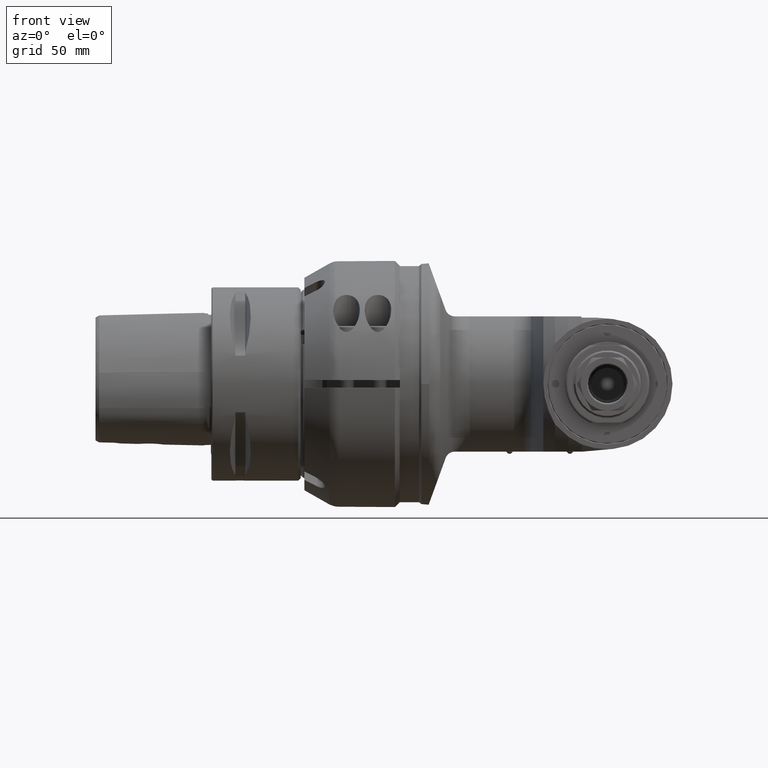
[diagram: clean part render]
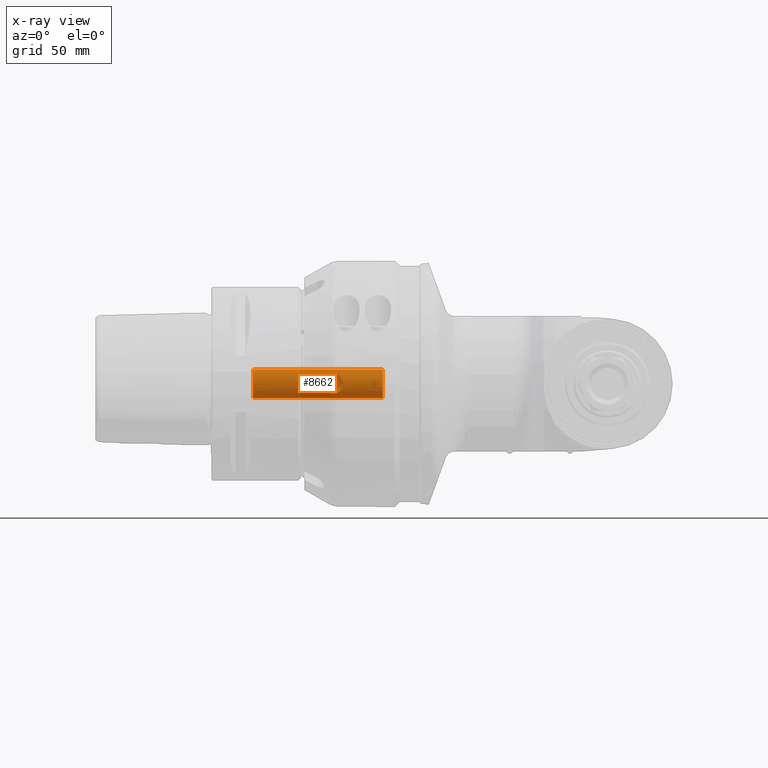
[diagram: x-ray — body ghosted, one internal face saturated and labeled with its STEP entity id]
A machine part, front view, then the same camera in x-ray: the body is ghosted and one INTERNAL B-rep face — a face not visible from any outside direction — is saturated and labeled: STEP entity #8662.
In plain terms, the highlighted cylindrical surface (bore or boss wall) has radius 6 mm, axis along (-1, 0, 0).
Its self-contained STEP definition (entity closure, byte-faithful):
#480=B_SPLINE_CURVE_WITH_KNOTS('',3,(#15079,#15080,#15081,#15082,#15083,
#15084,#15085,#15086,#15087,#15088,#15089,#15090,#15091,#15092,#15093,#15094,
#15095,#15096),.UNSPECIFIED.,.F.,.F.,(4,2,2,2,2,2,2,2,4),(-1.88331445659921,
-1.72723965461919,-1.57116485263918,-1.41335391185266,-1.25554297106614,
-1.09773203027962,-0.939921089493101,-0.783846287513086,-0.62777148553307),
 .UNSPECIFIED.);
#481=B_SPLINE_CURVE_WITH_KNOTS('',3,(#15098,#15099,#15100,#15101,#15102,
#15103,#15104,#15105,#15106,#15107,#15108,#15109,#15110,#15111,#15112,#15113,
#15114,#15115,#15116),.UNSPECIFIED.,.F.,.F.,(4,2,2,2,3,2,2,2,4),(-0.62777148553307,
-0.471696683553054,-0.315621881573038,-0.157810940786519,0.,0.157810940786519,
0.315621881573038,0.471696683553054,0.62777148553307),.UNSPECIFIED.);
#666=CYLINDRICAL_SURFACE('',#9562,6.);
#1001=CIRCLE('',#9560,6.);
#1003=CIRCLE('',#9563,6.);
#1004=CIRCLE('',#9564,6.);
#1476=FACE_OUTER_BOUND('',#2049,.T.);
#2049=EDGE_LOOP('',(#7270,#7271,#7272,#7273,#7274,#7275,#7276,#7277,#7278));
#2628=LINE('',#15077,#3195);
#2629=LINE('',#15097,#3196);
#3195=VECTOR('',#11602,6.);
#3196=VECTOR('',#11603,6.);
#3939=VERTEX_POINT('',#15068);
#3941=VERTEX_POINT('',#15073);
#3942=VERTEX_POINT('',#15074);
#3943=VERTEX_POINT('',#15076);
#3944=VERTEX_POINT('',#15078);
#5093=EDGE_CURVE('',#3939,#3939,#1001,.T.);
#5095=EDGE_CURVE('',#3941,#3942,#1003,.T.);
#5096=EDGE_CURVE('',#3941,#3943,#2628,.T.);
#5097=EDGE_CURVE('',#3943,#3944,#480,.T.);
#5098=EDGE_CURVE('',#3944,#3939,#2629,.T.);
#5099=EDGE_CURVE('',#3944,#3943,#481,.T.);
#5100=EDGE_CURVE('',#3942,#3941,#1004,.T.);
#7270=ORIENTED_EDGE('',*,*,#5095,.F.);
#7271=ORIENTED_EDGE('',*,*,#5096,.T.);
#7272=ORIENTED_EDGE('',*,*,#5097,.T.);
#7273=ORIENTED_EDGE('',*,*,#5098,.T.);
#7274=ORIENTED_EDGE('',*,*,#5093,.F.);
#7275=ORIENTED_EDGE('',*,*,#5098,.F.);
#7276=ORIENTED_EDGE('',*,*,#5099,.T.);
#7277=ORIENTED_EDGE('',*,*,#5096,.F.);
#7278=ORIENTED_EDGE('',*,*,#5100,.F.);
#8662=ADVANCED_FACE('',(#1476),#666,.T.);
#9560=AXIS2_PLACEMENT_3D('',#15069,#11594,#11595);
#9562=AXIS2_PLACEMENT_3D('',#15072,#11598,#11599);
#9563=AXIS2_PLACEMENT_3D('',#15075,#11600,#11601);
#9564=AXIS2_PLACEMENT_3D('',#15117,#11604,#11605);
#11594=DIRECTION('center_axis',(1.,0.,0.));
#11595=DIRECTION('ref_axis',(0.,-1.,0.));
#11598=DIRECTION('center_axis',(-1.,0.,0.));
#11599=DIRECTION('ref_axis',(0.,1.,0.));
#11600=DIRECTION('center_axis',(-1.,0.,0.));
#11601=DIRECTION('ref_axis',(0.,1.,0.));
#11602=DIRECTION('',(1.,0.,0.));
#11603=DIRECTION('',(1.,0.,0.));
#11604=DIRECTION('center_axis',(-1.,0.,0.));
#11605=DIRECTION('ref_axis',(0.,1.,0.));
#15068=CARTESIAN_POINT('',(-7.,74.,0.));
#15069=CARTESIAN_POINT('Origin',(-7.,80.,0.));
#15072=CARTESIAN_POINT('Origin',(17.00000250596,80.,0.));
#15073=CARTESIAN_POINT('',(-60.8,74.,0.));
#15074=CARTESIAN_POINT('',(-60.8,80.,6.));
#15075=CARTESIAN_POINT('Origin',(-60.8,80.,0.));
#15076=CARTESIAN_POINT('',(-31.5,74.,0.));
#15077=CARTESIAN_POINT('',(17.00000250596,74.,7.34788079488412E-16));
#15078=CARTESIAN_POINT('',(-23.5,74.,1.59227222626989E-16));
#15079=CARTESIAN_POINT('Ctrl Pts',(-31.5,74.,-6.93889390390723E-16));
#15080=CARTESIAN_POINT('Ctrl Pts',(-31.5,74.,0.520249339933385));
#15081=CARTESIAN_POINT('Ctrl Pts',(-31.3924890628061,74.0732861795248,1.06408494730268));
#15082=CARTESIAN_POINT('Ctrl Pts',(-30.9783646575541,74.336654089527,2.04566028873394));
#15083=CARTESIAN_POINT('Ctrl Pts',(-30.6725397180485,74.5245614597835,2.48431453144388));
#15084=CARTESIAN_POINT('Ctrl Pts',(-29.9804867051743,74.8944793551634,3.17636754431808));
#15085=CARTESIAN_POINT('Ctrl Pts',(-29.5426670179931,75.1051049221371,3.47966275670567));
#15086=CARTESIAN_POINT('Ctrl Pts',(-28.5666359204138,75.4255886215837,3.8913775523215));
#15087=CARTESIAN_POINT('Ctrl Pts',(-28.0260364692884,75.5278640450004,4.));
#15088=CARTESIAN_POINT('Ctrl Pts',(-26.9739635307116,75.5278640450004,4.));
#15089=CARTESIAN_POINT('Ctrl Pts',(-26.4333640795862,75.4255886215837,3.8913775523215));
#15090=CARTESIAN_POINT('Ctrl Pts',(-25.4573329820069,75.1051049221371,3.47966275670567));
#15091=CARTESIAN_POINT('Ctrl Pts',(-25.0195132948257,74.8944793551634,3.17636754431808));
#15092=CARTESIAN_POINT('Ctrl Pts',(-24.3274602819515,74.5245614597835,2.48431453144388));
#15093=CARTESIAN_POINT('Ctrl Pts',(-24.0216353424459,74.336654089527,2.04566028873394));
#15094=CARTESIAN_POINT('Ctrl Pts',(-23.6075109371939,74.0732861795248,1.06408494730268));
#15095=CARTESIAN_POINT('Ctrl Pts',(-23.5,74.,0.520249339933386));
#15096=CARTESIAN_POINT('Ctrl Pts',(-23.5,74.,-4.16333634234434E-16));
#15097=CARTESIAN_POINT('',(17.00000250596,74.,7.34788079488412E-16));
#15098=CARTESIAN_POINT('Ctrl Pts',(-23.5,74.,2.77555756156289E-16));
#15099=CARTESIAN_POINT('Ctrl Pts',(-23.5,74.,-0.520249339933385));
#15100=CARTESIAN_POINT('Ctrl Pts',(-23.6075109371939,74.0732861795248,-1.06408494730267));
#15101=CARTESIAN_POINT('Ctrl Pts',(-24.0216353424459,74.336654089527,-2.04566028873394));
#15102=CARTESIAN_POINT('Ctrl Pts',(-24.3274602819515,74.5245614597835,-2.48431453144388));
#15103=CARTESIAN_POINT('Ctrl Pts',(-25.0195132948257,74.8944793551634,-3.17636754431808));
#15104=CARTESIAN_POINT('Ctrl Pts',(-25.4573329820069,75.1051049221371,-3.47966275670567));
#15105=CARTESIAN_POINT('Ctrl Pts',(-26.4333640795862,75.4255886215837,-3.8913775523215));
#15106=CARTESIAN_POINT('Ctrl Pts',(-26.9739635307116,75.5278640450004,-4.));
#15107=CARTESIAN_POINT('Ctrl Pts',(-27.5,75.5278640450004,-4.));
#15108=CARTESIAN_POINT('Ctrl Pts',(-28.0260364692884,75.5278640450004,-4.));
#15109=CARTESIAN_POINT('Ctrl Pts',(-28.5666359204138,75.4255886215837,-3.8913775523215));
#15110=CARTESIAN_POINT('Ctrl Pts',(-29.5426670179931,75.1051049221371,-3.47966275670568));
#15111=CARTESIAN_POINT('Ctrl Pts',(-29.9804867051743,74.8944793551634,-3.17636754431808));
#15112=CARTESIAN_POINT('Ctrl Pts',(-30.6725397180485,74.5245614597835,-2.48431453144388));
#15113=CARTESIAN_POINT('Ctrl Pts',(-30.9783646575541,74.336654089527,-2.04566028873394));
#15114=CARTESIAN_POINT('Ctrl Pts',(-31.3924890628061,74.0732861795248,-1.06408494730267));
#15115=CARTESIAN_POINT('Ctrl Pts',(-31.5,74.,-0.520249339933386));
#15116=CARTESIAN_POINT('Ctrl Pts',(-31.5,74.,9.71445146547012E-16));
#15117=CARTESIAN_POINT('Origin',(-60.8,80.,0.));